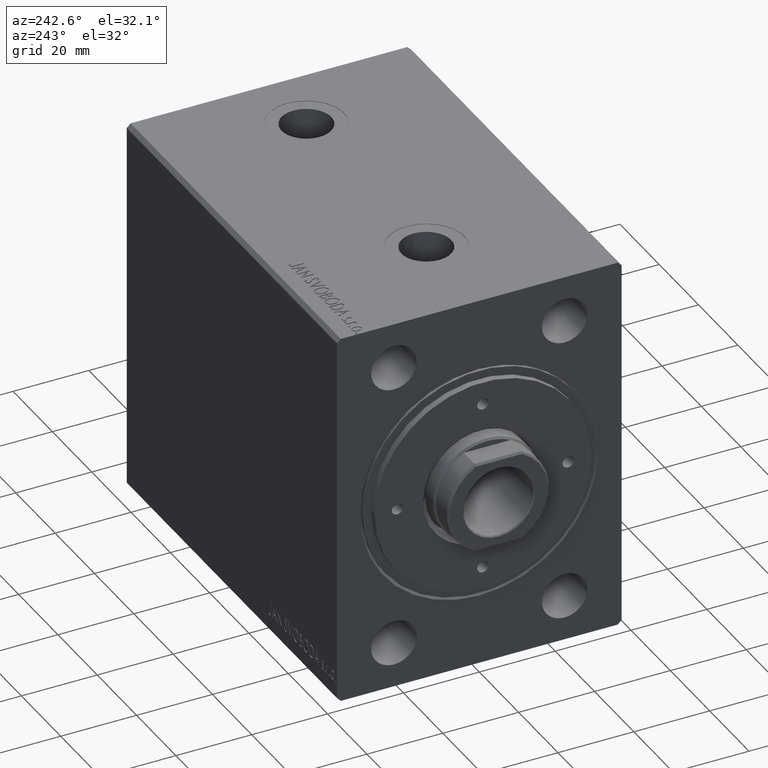
[diagram: clean part render]
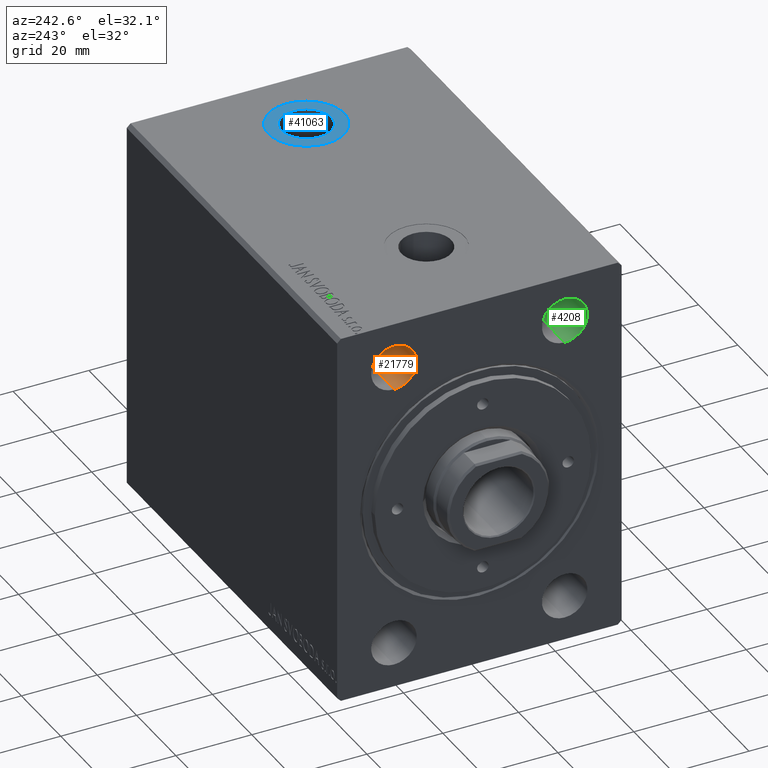
[diagram: same view with three faces highlighted in distinct colors, each labeled with its STEP entity id]
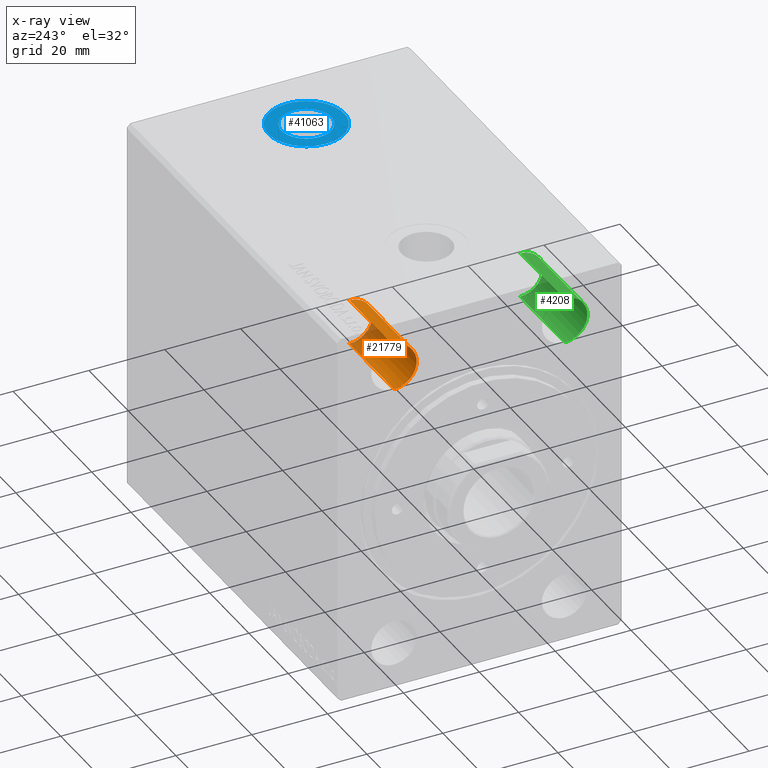
[diagram: x-ray of the same camera — body ghosted, the three highlighted faces saturated]
A machine part, auxiliary view with three faces highlighted in distinct colors.
The next image is the same camera in x-ray (body ghosted, the three faces saturated) — at least one of them is partly hidden behind the body in this view.
Their STEP definitions:

[orange] entity #21779 — the highlighted cylindrical surface (edge-blend (fillet) strip) has radius 6 mm, axis along (-1, -0, -0).
#2213 = DIRECTION ( 'NONE',  ( 0.000000000000000000, 0.000000000000000000, 1.000000000000000000 ) ) ;
#2554 = CARTESIAN_POINT ( 'NONE',  ( 22.67000000000000171, 22.50000000000000000, 32.00000000000000000 ) ) ;
#2774 = LINE ( 'NONE', #30172, #10617 ) ;
#4597 = AXIS2_PLACEMENT_3D ( 'NONE', #41074, #41299, #30621 ) ;
#6439 = ORIENTED_EDGE ( 'NONE', *, *, #28784, .T. ) ;
#8881 = DIRECTION ( 'NONE',  ( -1.000000000000000000, -0.000000000000000000, -0.000000000000000000 ) ) ;
#10617 = VECTOR ( 'NONE', #39744, 1000.000000000000000 ) ;
#11755 = VERTEX_POINT ( 'NONE', #40358 ) ;
#12227 = CARTESIAN_POINT ( 'NONE',  ( 22.67000000000000171, 22.50000000000000000, 38.00000000000000000 ) ) ;
#12310 = DIRECTION ( 'NONE',  ( -1.000000000000000000, -0.000000000000000000, -0.000000000000000000 ) ) ;
#12981 = DIRECTION ( 'NONE',  ( 0.000000000000000000, 0.000000000000000000, 1.000000000000000000 ) ) ;
#13028 = DIRECTION ( 'NONE',  ( -1.000000000000000000, -0.000000000000000000, -0.000000000000000000 ) ) ;
#13201 = CARTESIAN_POINT ( 'NONE',  ( 0.000000000000000000, 22.50000000000000000, 38.00000000000000000 ) ) ;
#16288 = EDGE_CURVE ( 'NONE', #35625, #29238, #2774, .T. ) ;
#16736 = VECTOR ( 'NONE', #13028, 1000.000000000000000 ) ;
#18128 = CIRCLE ( 'NONE', #4597, 5.999999999999998224 ) ;
#19606 = CARTESIAN_POINT ( 'NONE',  ( 2.449293598294703949E-16, 22.50000000000000000, 32.00000000000000000 ) ) ;
#20608 = AXIS2_PLACEMENT_3D ( 'NONE', #12227, #8881, #2213 ) ;
#21296 = CIRCLE ( 'NONE', #20608, 5.999999999999998224 ) ;
#21779 = ADVANCED_FACE ( 'NONE', ( #43503 ), #30139, .F. ) ;
#27272 = LINE ( 'NONE', #33536, #16736 ) ;
#28607 = ORIENTED_EDGE ( 'NONE', *, *, #29494, .F. ) ;
#28784 = EDGE_CURVE ( 'NONE', #29238, #40330, #18128, .T. ) ;
#29238 = VERTEX_POINT ( 'NONE', #19606 ) ;
#29494 = EDGE_CURVE ( 'NONE', #11755, #40330, #27272, .T. ) ;
#30072 = ORIENTED_EDGE ( 'NONE', *, *, #38551, .F. ) ;
#30139 = CYLINDRICAL_SURFACE ( 'NONE', #32901, 5.999999999999998224 ) ;
#30172 = CARTESIAN_POINT ( 'NONE',  ( 0.000000000000000000, 22.50000000000000000, 32.00000000000000000 ) ) ;
#30621 = DIRECTION ( 'NONE',  ( 0.000000000000000000, 0.000000000000000000, 1.000000000000000000 ) ) ;
#32901 = AXIS2_PLACEMENT_3D ( 'NONE', #13201, #12310, #12981 ) ;
#33536 = CARTESIAN_POINT ( 'NONE',  ( 0.000000000000000000, 22.50000000000000000, 44.00000000000000000 ) ) ;
#35625 = VERTEX_POINT ( 'NONE', #2554 ) ;
#37387 = CARTESIAN_POINT ( 'NONE',  ( 2.449293598294703949E-16, 22.50000000000000000, 44.00000000000000000 ) ) ;
#38551 = EDGE_CURVE ( 'NONE', #35625, #11755, #21296, .T. ) ;
#39744 = DIRECTION ( 'NONE',  ( -1.000000000000000000, -0.000000000000000000, -0.000000000000000000 ) ) ;
#40330 = VERTEX_POINT ( 'NONE', #37387 ) ;
#40358 = CARTESIAN_POINT ( 'NONE',  ( 22.67000000000000171, 22.50000000000000000, 44.00000000000000000 ) ) ;
#41074 = CARTESIAN_POINT ( 'NONE',  ( 2.449293598294703949E-16, 22.50000000000000000, 38.00000000000000000 ) ) ;
#41299 = DIRECTION ( 'NONE',  ( -1.000000000000000000, -0.000000000000000000, -0.000000000000000000 ) ) ;
#41578 = ORIENTED_EDGE ( 'NONE', *, *, #16288, .T. ) ;
#42539 = EDGE_LOOP ( 'NONE', ( #30072, #41578, #6439, #28607 ) ) ;
#43503 = FACE_OUTER_BOUND ( 'NONE', #42539, .T. ) ;

[blue] entity #41063 — the highlighted planar face has unit normal (0, 0, 1).
#800 = DIRECTION ( 'NONE',  ( 1.000000000000000000, 0.000000000000000000, 0.000000000000000000 ) ) ;
#1038 = CIRCLE ( 'NONE', #28756, 6.580000000000002736 ) ;
#1826 = FACE_OUTER_BOUND ( 'NONE', #28399, .T. ) ;
#2680 = CIRCLE ( 'NONE', #31145, 10.00000000000000888 ) ;
#3928 = DIRECTION ( 'NONE',  ( 0.000000000000000000, 0.000000000000000000, 1.000000000000000000 ) ) ;
#3956 = CARTESIAN_POINT ( 'NONE',  ( 88.00000000000000000, -8.968038796253944007E-15, 49.89999999999999147 ) ) ;
#4802 = CIRCLE ( 'NONE', #11208, 10.00000000000000888 ) ;
#7665 = CARTESIAN_POINT ( 'NONE',  ( 77.99999999999998579, -7.743391997106589370E-15, 49.89999999999999147 ) ) ;
#8375 = EDGE_CURVE ( 'NONE', #36184, #33703, #2680, .T. ) ;
#8412 = EDGE_CURVE ( 'NONE', #33703, #36184, #4802, .T. ) ;
#8931 = CARTESIAN_POINT ( 'NONE',  ( 88.00000000000000000, -8.968038796253944007E-15, 49.89999999999999147 ) ) ;
#11208 = AXIS2_PLACEMENT_3D ( 'NONE', #38485, #41831, #25332 ) ;
#11835 = DIRECTION ( 'NONE',  ( 1.000000000000000000, 0.000000000000000000, -0.000000000000000000 ) ) ;
#12062 = PLANE ( 'NONE',  #20670 ) ;
#12686 = ORIENTED_EDGE ( 'NONE', *, *, #8412, .T. ) ;
#15161 = VERTEX_POINT ( 'NONE', #18869 ) ;
#15534 = AXIS2_PLACEMENT_3D ( 'NONE', #28169, #3928, #800 ) ;
#16303 = DIRECTION ( 'NONE',  ( 0.000000000000000000, 0.000000000000000000, 1.000000000000000000 ) ) ;
#17629 = ORIENTED_EDGE ( 'NONE', *, *, #35552, .F. ) ;
#17853 = ORIENTED_EDGE ( 'NONE', *, *, #8375, .T. ) ;
#18869 = CARTESIAN_POINT ( 'NONE',  ( 81.41999999999998749, -8.162221202414984965E-15, 49.89999999999999147 ) ) ;
#19423 = FACE_BOUND ( 'NONE', #35094, .T. ) ;
#20670 = AXIS2_PLACEMENT_3D ( 'NONE', #8931, #16303, #11835 ) ;
#24017 = DIRECTION ( 'NONE',  ( 1.000000000000000000, 0.000000000000000000, 0.000000000000000000 ) ) ;
#25332 = DIRECTION ( 'NONE',  ( 1.000000000000000000, 0.000000000000000000, 0.000000000000000000 ) ) ;
#27341 = DIRECTION ( 'NONE',  ( 0.000000000000000000, 0.000000000000000000, 1.000000000000000000 ) ) ;
#28070 = EDGE_CURVE ( 'NONE', #15161, #33686, #1038, .T. ) ;
#28169 = CARTESIAN_POINT ( 'NONE',  ( 88.00000000000000000, -8.968038796253944007E-15, 49.89999999999999147 ) ) ;
#28215 = DIRECTION ( 'NONE',  ( 1.000000000000000000, 0.000000000000000000, 0.000000000000000000 ) ) ;
#28399 = EDGE_LOOP ( 'NONE', ( #12686, #17853 ) ) ;
#28756 = AXIS2_PLACEMENT_3D ( 'NONE', #3956, #27341, #24017 ) ;
#31145 = AXIS2_PLACEMENT_3D ( 'NONE', #31160, #41619, #28215 ) ;
#31160 = CARTESIAN_POINT ( 'NONE',  ( 88.00000000000000000, -8.968038796253944007E-15, 49.89999999999999147 ) ) ;
#33686 = VERTEX_POINT ( 'NONE', #42644 ) ;
#33703 = VERTEX_POINT ( 'NONE', #43961 ) ;
#35094 = EDGE_LOOP ( 'NONE', ( #17629, #42878 ) ) ;
#35552 = EDGE_CURVE ( 'NONE', #33686, #15161, #39686, .T. ) ;
#36184 = VERTEX_POINT ( 'NONE', #7665 ) ;
#38485 = CARTESIAN_POINT ( 'NONE',  ( 88.00000000000000000, -8.968038796253944007E-15, 49.89999999999999147 ) ) ;
#39686 = CIRCLE ( 'NONE', #15534, 6.580000000000002736 ) ;
#41063 = ADVANCED_FACE ( 'NONE', ( #19423, #1826 ), #12062, .T. ) ;
#41619 = DIRECTION ( 'NONE',  ( 0.000000000000000000, 0.000000000000000000, 1.000000000000000000 ) ) ;
#41831 = DIRECTION ( 'NONE',  ( 0.000000000000000000, 0.000000000000000000, 1.000000000000000000 ) ) ;
#42644 = CARTESIAN_POINT ( 'NONE',  ( 94.57999999999999829, -8.968038796253944007E-15, 49.89999999999999147 ) ) ;
#42878 = ORIENTED_EDGE ( 'NONE', *, *, #28070, .F. ) ;
#43961 = CARTESIAN_POINT ( 'NONE',  ( 98.00000000000000000, -8.968038796253944007E-15, 49.89999999999999147 ) ) ;

[green] entity #4208 — the highlighted cylindrical surface (edge-blend (fillet) strip) has radius 6 mm, axis along (-1, -0, -0).
#2466 = VERTEX_POINT ( 'NONE', #22787 ) ;
#3261 = CARTESIAN_POINT ( 'NONE',  ( 0.000000000000000000, -22.50000000000000000, 44.00000000000000000 ) ) ;
#3330 = ORIENTED_EDGE ( 'NONE', *, *, #4268, .F. ) ;
#3468 = EDGE_CURVE ( 'NONE', #33230, #9535, #7542, .T. ) ;
#3807 = CYLINDRICAL_SURFACE ( 'NONE', #43839, 5.999999999999998224 ) ;
#4208 = ADVANCED_FACE ( 'NONE', ( #10249 ), #3807, .F. ) ;
#4268 = EDGE_CURVE ( 'NONE', #37633, #2466, #28157, .T. ) ;
#4719 = LINE ( 'NONE', #38155, #24897 ) ;
#5817 = CARTESIAN_POINT ( 'NONE',  ( 2.449293598294703949E-16, -22.50000000000000000, 44.00000000000000000 ) ) ;
#7414 = ORIENTED_EDGE ( 'NONE', *, *, #40531, .F. ) ;
#7542 = CIRCLE ( 'NONE', #19638, 5.999999999999998224 ) ;
#8697 = DIRECTION ( 'NONE',  ( 0.000000000000000000, 0.000000000000000000, 1.000000000000000000 ) ) ;
#9535 = VERTEX_POINT ( 'NONE', #5817 ) ;
#10249 = FACE_OUTER_BOUND ( 'NONE', #26722, .T. ) ;
#10467 = DIRECTION ( 'NONE',  ( -1.000000000000000000, -0.000000000000000000, -0.000000000000000000 ) ) ;
#11373 = DIRECTION ( 'NONE',  ( -1.000000000000000000, -0.000000000000000000, -0.000000000000000000 ) ) ;
#14039 = DIRECTION ( 'NONE',  ( 0.000000000000000000, 0.000000000000000000, 1.000000000000000000 ) ) ;
#14842 = ORIENTED_EDGE ( 'NONE', *, *, #3468, .T. ) ;
#14916 = VECTOR ( 'NONE', #27514, 1000.000000000000000 ) ;
#15399 = AXIS2_PLACEMENT_3D ( 'NONE', #41660, #10467, #14039 ) ;
#17401 = DIRECTION ( 'NONE',  ( 0.000000000000000000, 0.000000000000000000, 1.000000000000000000 ) ) ;
#17836 = DIRECTION ( 'NONE',  ( -1.000000000000000000, -0.000000000000000000, -0.000000000000000000 ) ) ;
#19638 = AXIS2_PLACEMENT_3D ( 'NONE', #39004, #11373, #8697 ) ;
#22787 = CARTESIAN_POINT ( 'NONE',  ( 22.67000000000000171, -22.50000000000000000, 44.00000000000000000 ) ) ;
#24897 = VECTOR ( 'NONE', #31679, 1000.000000000000000 ) ;
#25591 = CARTESIAN_POINT ( 'NONE',  ( 22.67000000000000171, -22.50000000000000000, 32.00000000000000000 ) ) ;
#26722 = EDGE_LOOP ( 'NONE', ( #3330, #42667, #14842, #7414 ) ) ;
#27514 = DIRECTION ( 'NONE',  ( -1.000000000000000000, -0.000000000000000000, -0.000000000000000000 ) ) ;
#27730 = LINE ( 'NONE', #3261, #14916 ) ;
#28157 = CIRCLE ( 'NONE', #15399, 5.999999999999998224 ) ;
#31679 = DIRECTION ( 'NONE',  ( -1.000000000000000000, -0.000000000000000000, -0.000000000000000000 ) ) ;
#33230 = VERTEX_POINT ( 'NONE', #42750 ) ;
#37228 = CARTESIAN_POINT ( 'NONE',  ( 0.000000000000000000, -22.50000000000000000, 38.00000000000000000 ) ) ;
#37633 = VERTEX_POINT ( 'NONE', #25591 ) ;
#38155 = CARTESIAN_POINT ( 'NONE',  ( 0.000000000000000000, -22.50000000000000000, 32.00000000000000000 ) ) ;
#39004 = CARTESIAN_POINT ( 'NONE',  ( 2.449293598294703949E-16, -22.50000000000000000, 38.00000000000000000 ) ) ;
#40531 = EDGE_CURVE ( 'NONE', #2466, #9535, #27730, .T. ) ;
#40956 = EDGE_CURVE ( 'NONE', #37633, #33230, #4719, .T. ) ;
#41660 = CARTESIAN_POINT ( 'NONE',  ( 22.67000000000000171, -22.50000000000000000, 38.00000000000000000 ) ) ;
#42667 = ORIENTED_EDGE ( 'NONE', *, *, #40956, .T. ) ;
#42750 = CARTESIAN_POINT ( 'NONE',  ( 2.449293598294703949E-16, -22.50000000000000000, 32.00000000000000000 ) ) ;
#43839 = AXIS2_PLACEMENT_3D ( 'NONE', #37228, #17836, #17401 ) ;